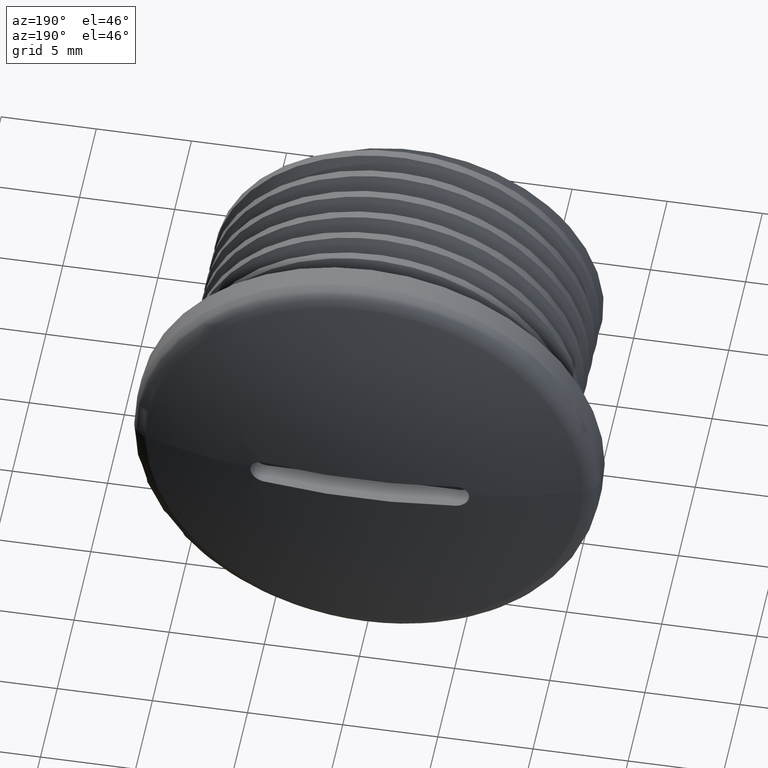
[diagram: clean part render]
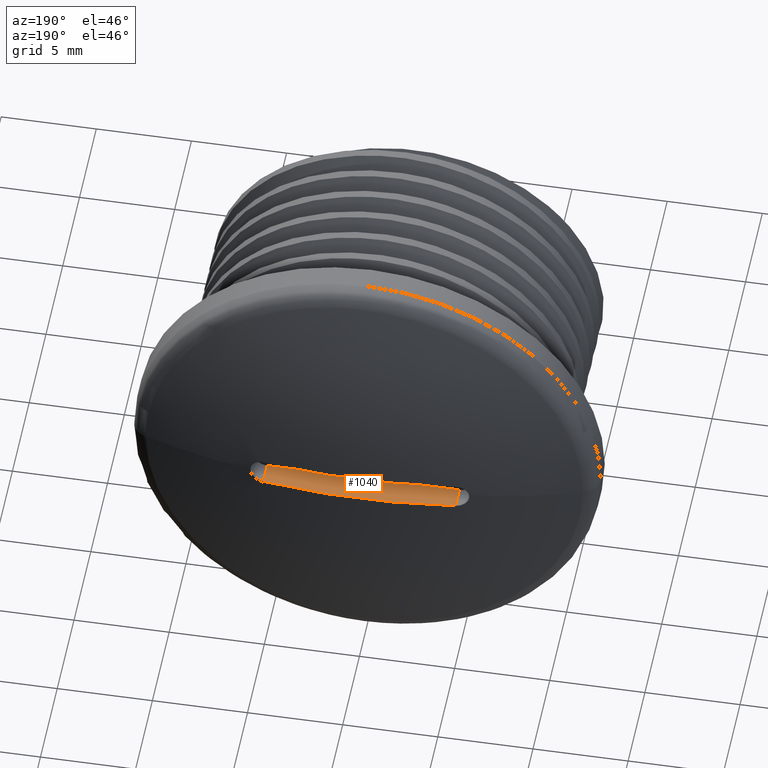
[diagram: same view with one face highlighted and labeled with its STEP entity id]
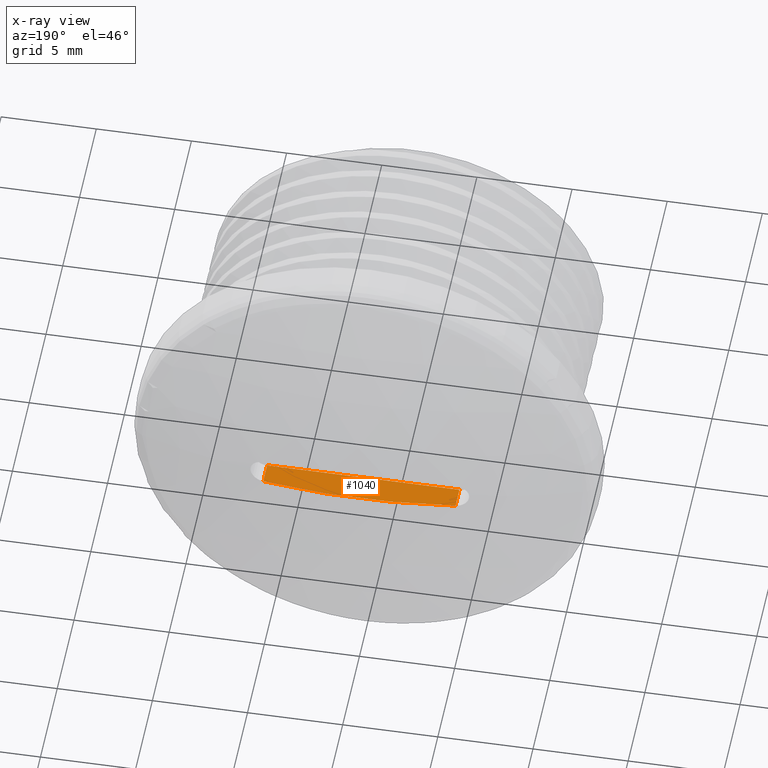
[diagram: x-ray of the same camera — body ghosted, the highlighted face saturated]
A machine part, auxiliary view. The second image highlights one B-rep face of the part: STEP entity #1040.
The next image is the same camera in x-ray: the body ghosted, the highlighted face saturated — about 0% of this face is hidden behind the body in this view.
In plain terms, the highlighted planar face has unit normal (0, 0, 1).
Its self-contained STEP definition (entity closure, byte-faithful):
#408 = EDGE_LOOP ( 'NONE', ( #837, #843, #871, #840 ) ) ;
#449 = VERTEX_POINT ( 'NONE', #517 ) ;
#457 = VERTEX_POINT ( 'NONE', #512 ) ;
#461 = VERTEX_POINT ( 'NONE', #511 ) ;
#468 = VERTEX_POINT ( 'NONE', #514 ) ;
#511 = CARTESIAN_POINT ( 'NONE',  ( 5.049999999999996300, 14.99394996206814700, -0.6999999999999999600 ) ) ;
#512 = CARTESIAN_POINT ( 'NONE',  ( -5.050000000000004300, 13.83120905926521300, -0.6999999999999999600 ) ) ;
#514 = CARTESIAN_POINT ( 'NONE',  ( -5.050000000000004300, 14.99394996206814300, -0.6999999999999999600 ) ) ;
#517 = CARTESIAN_POINT ( 'NONE',  ( 5.049999999999996300, 13.83120905926521300, -0.6999999999999999600 ) ) ;
#837 = ORIENTED_EDGE ( 'NONE', *, *, #1008, .T. ) ;
#840 = ORIENTED_EDGE ( 'NONE', *, *, #1013, .T. ) ;
#843 = ORIENTED_EDGE ( 'NONE', *, *, #1011, .T. ) ;
#871 = ORIENTED_EDGE ( 'NONE', *, *, #1009, .F. ) ;
#1008 = EDGE_CURVE ( 'NONE', #457, #449, #2536, .T. ) ;
#1009 = EDGE_CURVE ( 'NONE', #468, #461, #2272, .T. ) ;
#1011 = EDGE_CURVE ( 'NONE', #449, #461, #2520, .T. ) ;
#1013 = EDGE_CURVE ( 'NONE', #468, #457, #2532, .T. ) ;
#1040 = ADVANCED_FACE ( 'NONE', ( #1842 ), #1840, .T. ) ;
#1838 = DIRECTION ( 'NONE',  ( 1.000000000000000000, 0.0000000000000000000, -0.0000000000000000000 ) ) ;
#1840 = PLANE ( 'NONE',  #2244 ) ;
#1842 = FACE_OUTER_BOUND ( 'NONE', #408, .T. ) ;
#1847 = CARTESIAN_POINT ( 'NONE',  ( -5.750000000000004400, 16.94943874192479800, -0.6999999999999999600 ) ) ;
#1858 = DIRECTION ( 'NONE',  ( 0.0000000000000000000, 0.0000000000000000000, 1.000000000000000000 ) ) ;
#2226 = VECTOR ( 'NONE', #2529, 1000.000000000000000 ) ;
#2244 = AXIS2_PLACEMENT_3D ( 'NONE', #1847, #1858, #1838 ) ;
#2260 = AXIS2_PLACEMENT_3D ( 'NONE', #2525, #2515, #2530 ) ;
#2261 = VECTOR ( 'NONE', #2539, 1000.000000000000000 ) ;
#2263 = VECTOR ( 'NONE', #2516, 1000.000000000000000 ) ;
#2272 = CIRCLE ( 'NONE', #2260, 37.53090657572697400 ) ;
#2515 = DIRECTION ( 'NONE',  ( -0.0000000000000000000, -0.0000000000000000000, -1.000000000000000000 ) ) ;
#2516 = DIRECTION ( 'NONE',  ( 0.0000000000000000000, -1.000000000000000000, 0.0000000000000000000 ) ) ;
#2518 = CARTESIAN_POINT ( 'NONE',  ( -5.750000000000004400, 13.83120905926521300, -0.6999999999999999600 ) ) ;
#2520 = LINE ( 'NONE', #2540, #2226 ) ;
#2525 = CARTESIAN_POINT ( 'NONE',  ( 0.0000000000000000000, -22.19565138556593100, -0.6999999999999999600 ) ) ;
#2529 = DIRECTION ( 'NONE',  ( 0.0000000000000000000, 1.000000000000000000, 0.0000000000000000000 ) ) ;
#2530 = DIRECTION ( 'NONE',  ( 1.000000000000000000, 3.512811072341745600E-015, 0.0000000000000000000 ) ) ;
#2531 = CARTESIAN_POINT ( 'NONE',  ( -5.050000000000004300, 16.94943874192479800, -0.6999999999999999600 ) ) ;
#2532 = LINE ( 'NONE', #2531, #2263 ) ;
#2536 = LINE ( 'NONE', #2518, #2261 ) ;
#2539 = DIRECTION ( 'NONE',  ( 1.000000000000000000, 0.0000000000000000000, 0.0000000000000000000 ) ) ;
#2540 = CARTESIAN_POINT ( 'NONE',  ( 5.049999999999996300, 16.94943874192479800, -0.6999999999999999600 ) ) ;